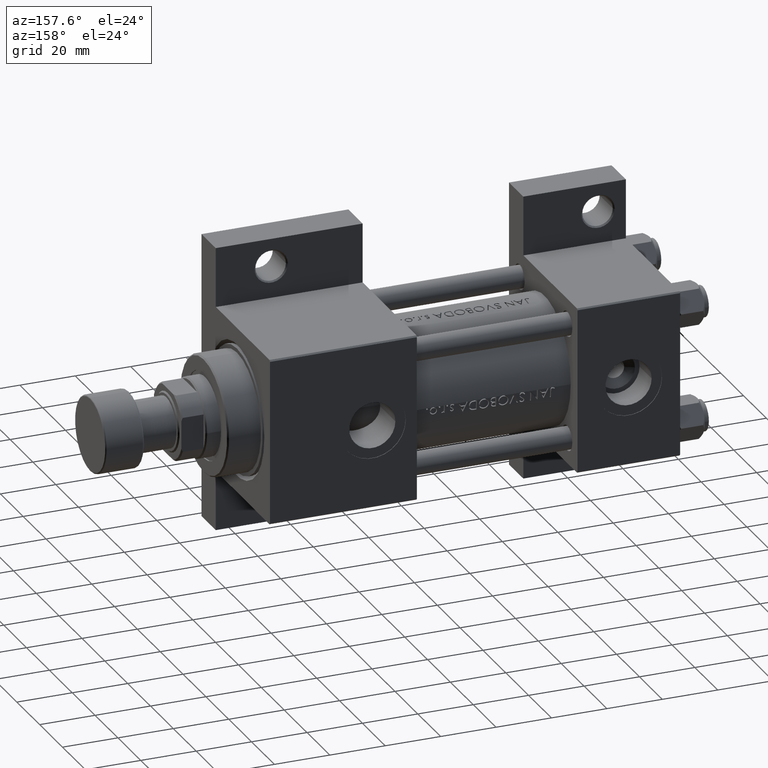
[diagram: clean part render]
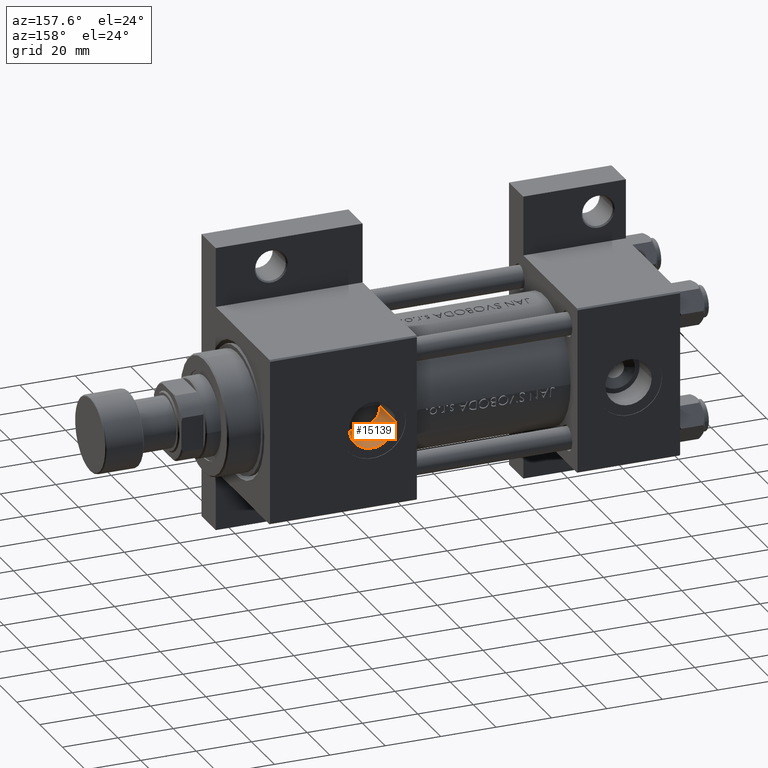
[diagram: same view with one face highlighted and labeled with its STEP entity id]
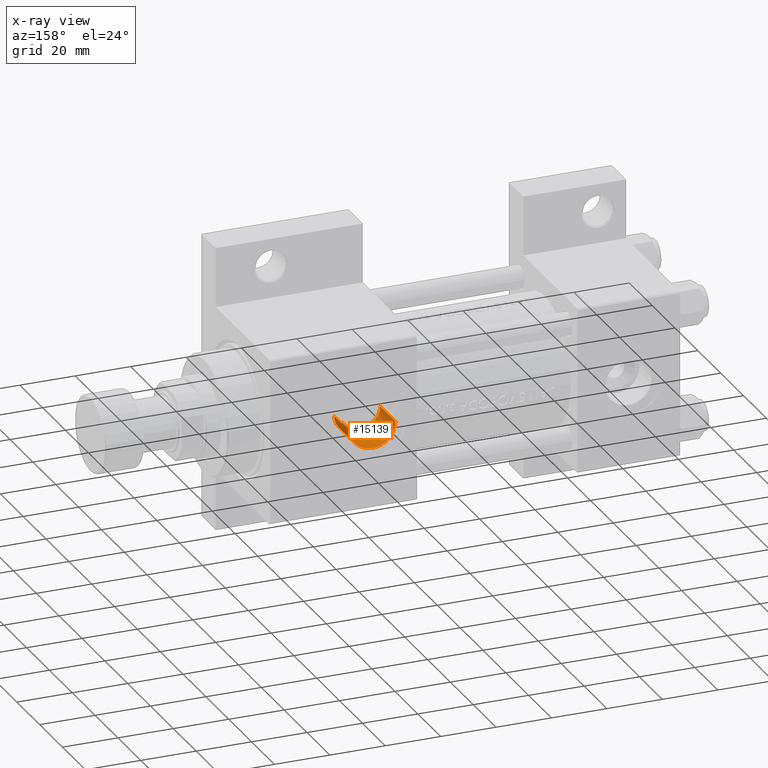
[diagram: x-ray of the same camera — body ghosted, the highlighted face saturated]
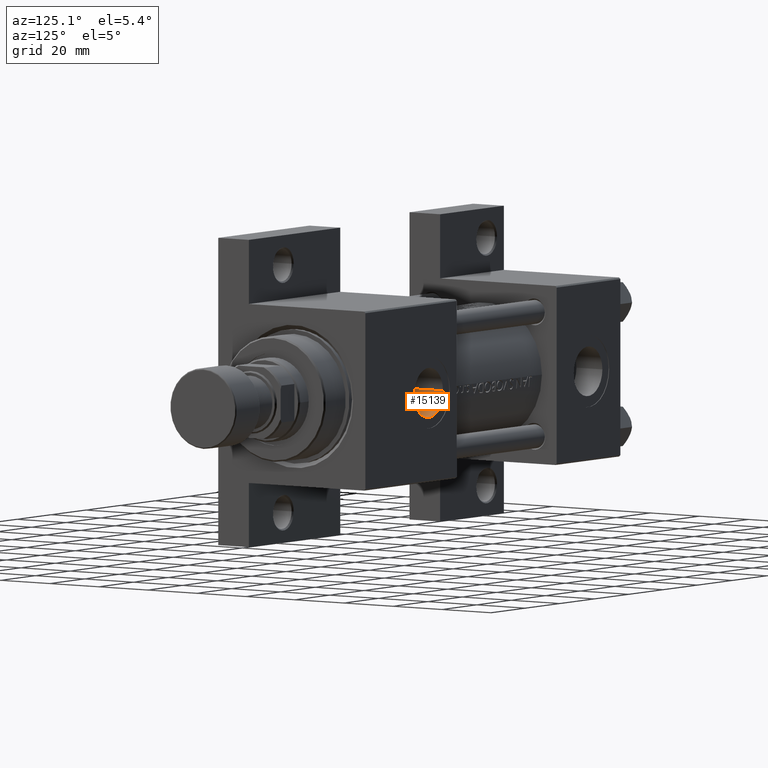
[diagram: same view with one face highlighted and labeled with its STEP entity id]
A machine part, auxiliary view. The second image highlights one B-rep face of the part: STEP entity #15139.
The next image is the same camera in x-ray: the body ghosted, the highlighted face saturated — about 0% of this face is hidden behind the body in this view.
A second angle (auxiliary view) of the same face is appended — the face is thin or edge-on in the first view.
In plain terms, the highlighted cylindrical surface (edge-blend (fillet) strip) has radius 8.33 mm, axis along (0, -1, 0).
Its self-contained STEP definition (entity closure, byte-faithful):
#640 = ORIENTED_EDGE ( 'NONE', *, *, #42308, .T. ) ;
#2128 = CARTESIAN_POINT ( 'NONE',  ( 119.2999999999999829, 0.7063285354565354002, 23.48891060056045532 ) ) ;
#2275 = CARTESIAN_POINT ( 'NONE',  ( 110.0961245563538995, 8.285231283310354300, 14.09988401430629246 ) ) ;
#2512 = CARTESIAN_POINT ( 'NONE',  ( 117.9017814515972589, 4.693120186998879007, 15.77885283960396556 ) ) ;
#2724 = FACE_OUTER_BOUND ( 'NONE', #15898, .T. ) ;
#2745 = CARTESIAN_POINT ( 'NONE',  ( 102.6700000000000728, 0.2692781161559569258, 16.50000000000001421 ) ) ;
#2987 = CARTESIAN_POINT ( 'NONE',  ( 118.1821809494404931, 4.252752687106061025, 15.91311828418764307 ) ) ;
#3235 = CARTESIAN_POINT ( 'NONE',  ( 104.6351521567280543, 5.399275359235578442, 15.53490046566676419 ) ) ;
#3344 = VECTOR ( 'NONE', #28717, 1000.000000000000000 ) ;
#3997 = LINE ( 'NONE', #37774, #45776 ) ;
#5936 = CARTESIAN_POINT ( 'NONE',  ( 102.6830263376666466, 0.5382373393380799342, 16.49298755787483017 ) ) ;
#6105 = EDGE_CURVE ( 'NONE', #6917, #42812, #37703, .T. ) ;
#6410 = CARTESIAN_POINT ( 'NONE',  ( 102.9323351773738011, 2.143895289495524992, 16.36035123208332465 ) ) ;
#6634 = DIRECTION ( 'NONE',  ( 1.000000000000000000, 0.000000000000000000, 0.000000000000000000 ) ) ;
#6641 = CARTESIAN_POINT ( 'NONE',  ( 117.2636960965467807, 5.515983638965255231, 15.49185263653182254 ) ) ;
#6884 = CARTESIAN_POINT ( 'NONE',  ( 118.5428870207784797, 3.544564506934530179, 16.09123298641118183 ) ) ;
#6917 = VERTEX_POINT ( 'NONE', #19471 ) ;
#8658 = AXIS2_PLACEMENT_3D ( 'NONE', #13920, #44033, #28755 ) ;
#9824 = CARTESIAN_POINT ( 'NONE',  ( 104.3108638884341843, 4.991865470557810269, 15.68134318030004870 ) ) ;
#10065 = CARTESIAN_POINT ( 'NONE',  ( 118.8491620312711206, 2.801948762054943920, 16.24674929831635950 ) ) ;
#10302 = CARTESIAN_POINT ( 'NONE',  ( 105.3619139893283432, 6.154303259437305051, 15.23165687271049151 ) ) ;
#10536 = CARTESIAN_POINT ( 'NONE',  ( 110.3699255016522756, 8.310562936261197464, 14.08375847227049782 ) ) ;
#11101 = B_SPLINE_CURVE_WITH_KNOTS ( 'NONE', 3,
 ( #20770, #2745, #5936, #43819, #25123, #6410, #32667, #18066, #25361, #9824, #3235, #10302, #21482, #17126, #35599, #21249, #46772, #44057, #36308, #47242, #36068, #2275, #10536, #43115, #47481, #47713, #40182, #17595, #21019, #25608, #31953, #28774, #47006, #39946, #43590, #17358, #6641, #2512, #2987, #6884, #29009, #10065, #32892, #13705, #32185, #14416 ),
 .UNSPECIFIED., .F., .F.,
 ( 4, 2, 2, 2, 2, 2, 2, 2, 2, 2, 2, 2, 2, 2, 2, 2, 2, 2, 2, 2, 2, 2, 4 ),
 ( 0.02586561750490628045, 0.02667257115183744101, 0.02747952479876860157, 0.02909343209263092270, 0.03070733938649324729, 0.03232124668035556841, 0.03393515397421788954, 0.03474210762114905010, 0.03554906126808021066, 0.03716296856194256648, 0.03796992220887372704, 0.03877687585580488761, 0.04039078314966723648, 0.04119773679659839705, 0.04200469044352955761, 0.04281164409046071817, 0.04361859773739187179, 0.04523250503125419292, 0.04684641232511650710, 0.04846031961897882823, 0.04926727326590998185, 0.05007422691284113547, 0.05168813420670345660 ),
 .UNSPECIFIED. ) ;
#11625 = ORIENTED_EDGE ( 'NONE', *, *, #39963, .F. ) ;
#13233 = CARTESIAN_POINT ( 'NONE',  ( 111.0000000000000000, -3.469446951953613794E-15, 29.79999999999999716 ) ) ;
#13334 = CARTESIAN_POINT ( 'NONE',  ( 119.3200361445783102, 0.4708856903043578401, 23.49630535626711492 ) ) ;
#13705 = CARTESIAN_POINT ( 'NONE',  ( 119.1550002228559890, 1.780279521111770791, 16.40614980614643770 ) ) ;
#13883 = CARTESIAN_POINT ( 'NONE',  ( 119.2999999999999829, 0.7063285354565354002, 52.79999999999999716 ) ) ;
#13920 = CARTESIAN_POINT ( 'NONE',  ( 111.0000000000000000, -3.469446951953613794E-15, 52.79999999999999716 ) ) ;
#14394 = CYLINDRICAL_SURFACE ( 'NONE', #8658, 8.330000000000003624 ) ;
#14416 = CARTESIAN_POINT ( 'NONE',  ( 119.2999999999999829, 0.7063285354565354002, 16.48389808801388412 ) ) ;
#15139 = ADVANCED_FACE ( 'NONE', ( #2724 ), #14394, .F. ) ;
#15898 = EDGE_LOOP ( 'NONE', ( #23263, #11625, #640, #43680, #29829, #27615 ) ) ;
#17126 = CARTESIAN_POINT ( 'NONE',  ( 106.3914020546078945, 6.943847275614623449, 14.85860288735604762 ) ) ;
#17299 = LINE ( 'NONE', #13883, #3344 ) ;
#17358 = CARTESIAN_POINT ( 'NONE',  ( 116.9021014551140070, 5.901284207169331886, 15.33759116759395447 ) ) ;
#17563 = VERTEX_POINT ( 'NONE', #18921 ) ;
#17595 = CARTESIAN_POINT ( 'NONE',  ( 113.3101403164750565, 8.007790053772856353, 14.27144766602748227 ) ) ;
#18066 = CARTESIAN_POINT ( 'NONE',  ( 103.4884433949717248, 3.639785051710008990, 16.07496769168806594 ) ) ;
#18921 = CARTESIAN_POINT ( 'NONE',  ( 102.6700000000000017, 1.898304232373456188E-15, 16.50000000000000711 ) ) ;
#19471 = CARTESIAN_POINT ( 'NONE',  ( 119.3300000000000125, -2.449316168263869821E-15, 29.79999999999999716 ) ) ;
#19580 = B_SPLINE_CURVE_WITH_KNOTS ( 'NONE', 3,
 ( #2128, #13334, #32280, #36167 ),
 .UNSPECIFIED., .F., .F.,
 ( 4, 4 ),
 ( 0.000000000000000000, 0.0007063285354565328363 ),
 .UNSPECIFIED. ) ;
#19964 = VERTEX_POINT ( 'NONE', #36006 ) ;
#20770 = CARTESIAN_POINT ( 'NONE',  ( 102.6700000000000017, 1.898304232373456188E-15, 16.50000000000000711 ) ) ;
#21019 = CARTESIAN_POINT ( 'NONE',  ( 113.5653903393933035, 7.929573453247048320, 14.31850891624572775 ) ) ;
#21249 = CARTESIAN_POINT ( 'NONE',  ( 107.0641356425913102, 7.346187746824328180, 14.64937350183228659 ) ) ;
#21482 = CARTESIAN_POINT ( 'NONE',  ( 105.7567134674390559, 6.493535737546836550, 15.07819411470012483 ) ) ;
#21620 = VECTOR ( 'NONE', #37476, 1000.000000000000000 ) ;
#22985 = EDGE_CURVE ( 'NONE', #26436, #19964, #17299, .T. ) ;
#23103 = CARTESIAN_POINT ( 'NONE',  ( 119.3300000000000125, -2.449316168263869032E-15, 52.79999999999999716 ) ) ;
#23263 = ORIENTED_EDGE ( 'NONE', *, *, #6105, .F. ) ;
#24761 = AXIS2_PLACEMENT_3D ( 'NONE', #13233, #39941, #6634 ) ;
#25123 = CARTESIAN_POINT ( 'NONE',  ( 102.7748422588737753, 1.345113678925243361, 16.44384467796441385 ) ) ;
#25361 = CARTESIAN_POINT ( 'NONE',  ( 103.7382412053277676, 4.114622947877693449, 15.95093430025991488 ) ) ;
#25608 = CARTESIAN_POINT ( 'NONE',  ( 114.0650487448088342, 7.750150897617357870, 14.42370947118262592 ) ) ;
#26436 = VERTEX_POINT ( 'NONE', #36586 ) ;
#27615 = ORIENTED_EDGE ( 'NONE', *, *, #47097, .T. ) ;
#28717 = DIRECTION ( 'NONE',  ( 0.000000000000000000, 0.000000000000000000, -1.000000000000000000 ) ) ;
#28755 = DIRECTION ( 'NONE',  ( -1.000000000000000000, 0.000000000000000000, 0.000000000000000000 ) ) ;
#28774 = CARTESIAN_POINT ( 'NONE',  ( 114.7878989153693396, 7.423653917640647748, 14.60720322249615677 ) ) ;
#29009 = CARTESIAN_POINT ( 'NONE',  ( 118.6535066739793365, 3.299105492354561520, 16.14695296028900273 ) ) ;
#29829 = ORIENTED_EDGE ( 'NONE', *, *, #22985, .F. ) ;
#31953 = CARTESIAN_POINT ( 'NONE',  ( 114.3094557415240047, 7.648942304453065333, 14.48185071310165206 ) ) ;
#32185 = CARTESIAN_POINT ( 'NONE',  ( 119.2535736795806116, 1.251879847823936354, 16.45901168942803139 ) ) ;
#32280 = CARTESIAN_POINT ( 'NONE',  ( 119.3300000000000125, 0.2354428451521802246, 23.50000000000001066 ) ) ;
#32667 = CARTESIAN_POINT ( 'NONE',  ( 103.0866881673992310, 2.655374492085108784, 16.27912538186902225 ) ) ;
#32892 = CARTESIAN_POINT ( 'NONE',  ( 118.9347458643765805, 2.549478185781644424, 16.29108801674696139 ) ) ;
#33656 = DIRECTION ( 'NONE',  ( 0.000000000000000000, 0.000000000000000000, -1.000000000000000000 ) ) ;
#35599 = CARTESIAN_POINT ( 'NONE',  ( 106.6103928475615277, 7.084409057837729229, 14.78705986442867903 ) ) ;
#36006 = CARTESIAN_POINT ( 'NONE',  ( 119.2999999999999829, 0.7063285354565354002, 16.48389808801388412 ) ) ;
#36068 = CARTESIAN_POINT ( 'NONE',  ( 109.5605833038424208, 8.209149030831014215, 14.14769526555238244 ) ) ;
#36167 = CARTESIAN_POINT ( 'NONE',  ( 119.3300000000000125, 2.755455270027974659E-15, 23.50000000000001066 ) ) ;
#36308 = CARTESIAN_POINT ( 'NONE',  ( 108.5224199253087534, 7.970776178815811797, 14.29429473676390039 ) ) ;
#36381 = CIRCLE ( 'NONE', #24761, 8.330000000000003624 ) ;
#36586 = CARTESIAN_POINT ( 'NONE',  ( 119.2999999999999829, 0.7063285354565354002, 23.48891060056045532 ) ) ;
#37476 = DIRECTION ( 'NONE',  ( 0.000000000000000000, 0.000000000000000000, -1.000000000000000000 ) ) ;
#37703 = LINE ( 'NONE', #23103, #21620 ) ;
#37774 = CARTESIAN_POINT ( 'NONE',  ( 102.6700000000000017, -3.469446951953613794E-15, 52.79999999999999716 ) ) ;
#39941 = DIRECTION ( 'NONE',  ( -0.000000000000000000, -0.000000000000000000, -1.000000000000000000 ) ) ;
#39946 = CARTESIAN_POINT ( 'NONE',  ( 115.7013846757648423, 6.896553212426755231, 14.88449017423049092 ) ) ;
#39963 = EDGE_CURVE ( 'NONE', #42272, #6917, #36381, .T. ) ;
#40182 = CARTESIAN_POINT ( 'NONE',  ( 112.7879913300365047, 8.140303239488144271, 14.19058330274247304 ) ) ;
#40649 = EDGE_CURVE ( 'NONE', #17563, #19964, #11101, .T. ) ;
#42272 = VERTEX_POINT ( 'NONE', #48008 ) ;
#42308 = EDGE_CURVE ( 'NONE', #42272, #17563, #3997, .T. ) ;
#42812 = VERTEX_POINT ( 'NONE', #47598 ) ;
#43115 = CARTESIAN_POINT ( 'NONE',  ( 111.1827731937053301, 8.345639263937124852, 14.06143459154866271 ) ) ;
#43590 = CARTESIAN_POINT ( 'NONE',  ( 116.1213706297519082, 6.590259460215496468, 15.03424939317719655 ) ) ;
#43680 = ORIENTED_EDGE ( 'NONE', *, *, #40649, .T. ) ;
#43819 = CARTESIAN_POINT ( 'NONE',  ( 102.7353150131715722, 1.075514947314766712, 16.46498077916762881 ) ) ;
#44033 = DIRECTION ( 'NONE',  ( 0.000000000000000000, 0.000000000000000000, -1.000000000000000000 ) ) ;
#44057 = CARTESIAN_POINT ( 'NONE',  ( 108.0235363201844763, 7.798107477347335781, 14.39787891672379416 ) ) ;
#45776 = VECTOR ( 'NONE', #33656, 1000.000000000000000 ) ;
#46772 = CARTESIAN_POINT ( 'NONE',  ( 107.3002806938656590, 7.468012193495484397, 14.58288275005221557 ) ) ;
#47006 = CARTESIAN_POINT ( 'NONE',  ( 115.0228866172804487, 7.298933092229526132, 14.67473780800535366 ) ) ;
#47097 = EDGE_CURVE ( 'NONE', #26436, #42812, #19580, .T. ) ;
#47242 = CARTESIAN_POINT ( 'NONE',  ( 109.2976579557378756, 8.158530844714539043, 14.17929287996981813 ) ) ;
#47481 = CARTESIAN_POINT ( 'NONE',  ( 111.7204179385424254, 8.316316922132148903, 14.08044599360020754 ) ) ;
#47598 = CARTESIAN_POINT ( 'NONE',  ( 119.3300000000000125, 2.755455270027974659E-15, 23.50000000000001066 ) ) ;
#47713 = CARTESIAN_POINT ( 'NONE',  ( 112.5206788388489514, 8.194464177599162014, 14.15686343614057208 ) ) ;
#48008 = CARTESIAN_POINT ( 'NONE',  ( 102.6700000000000017, -3.469446951953613794E-15, 29.79999999999999716 ) ) ;